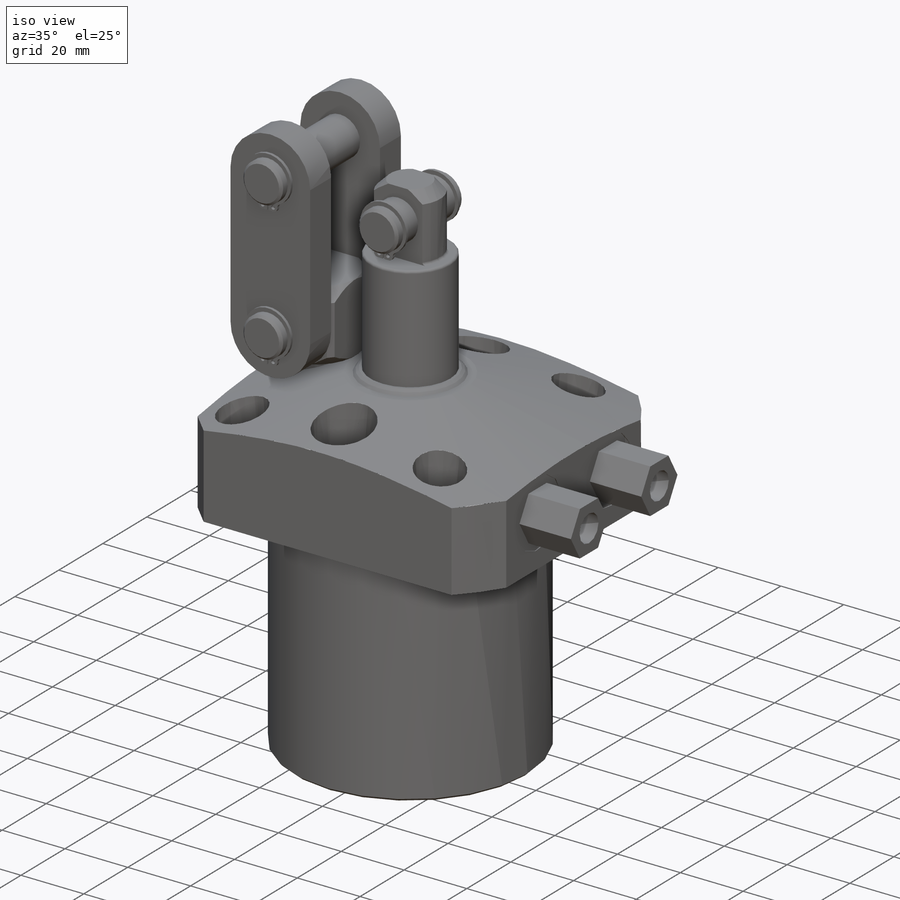
[diagram: iso view]
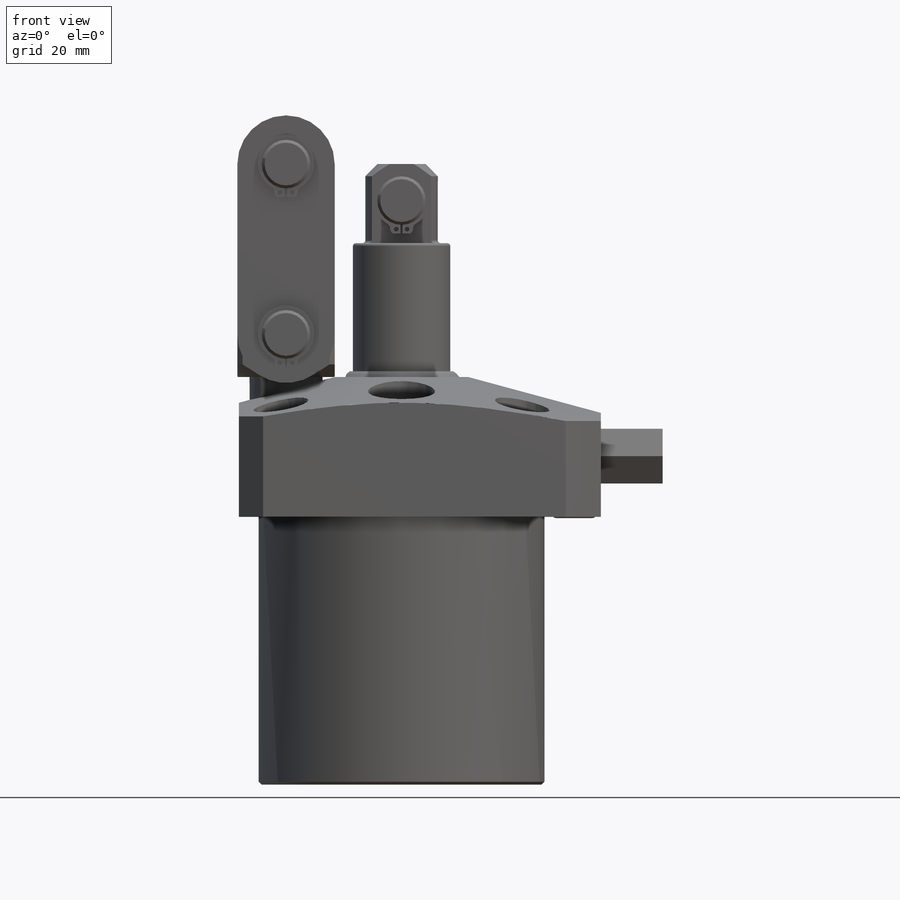
[diagram: front view]
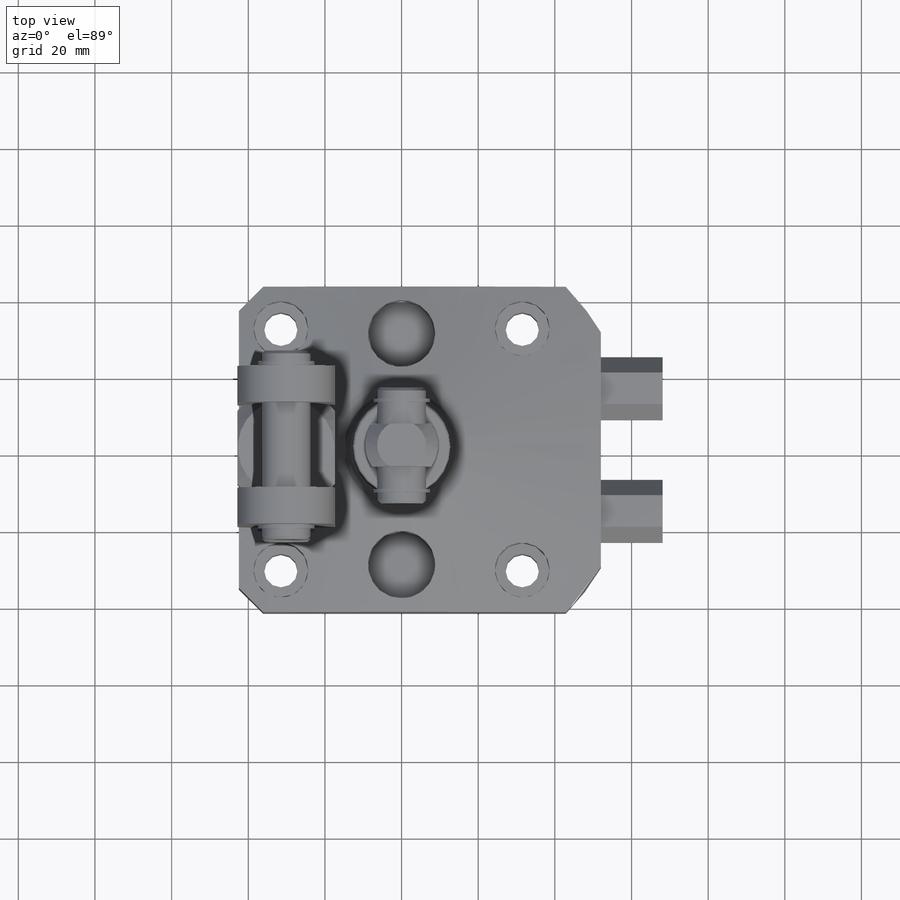
[diagram: top view]
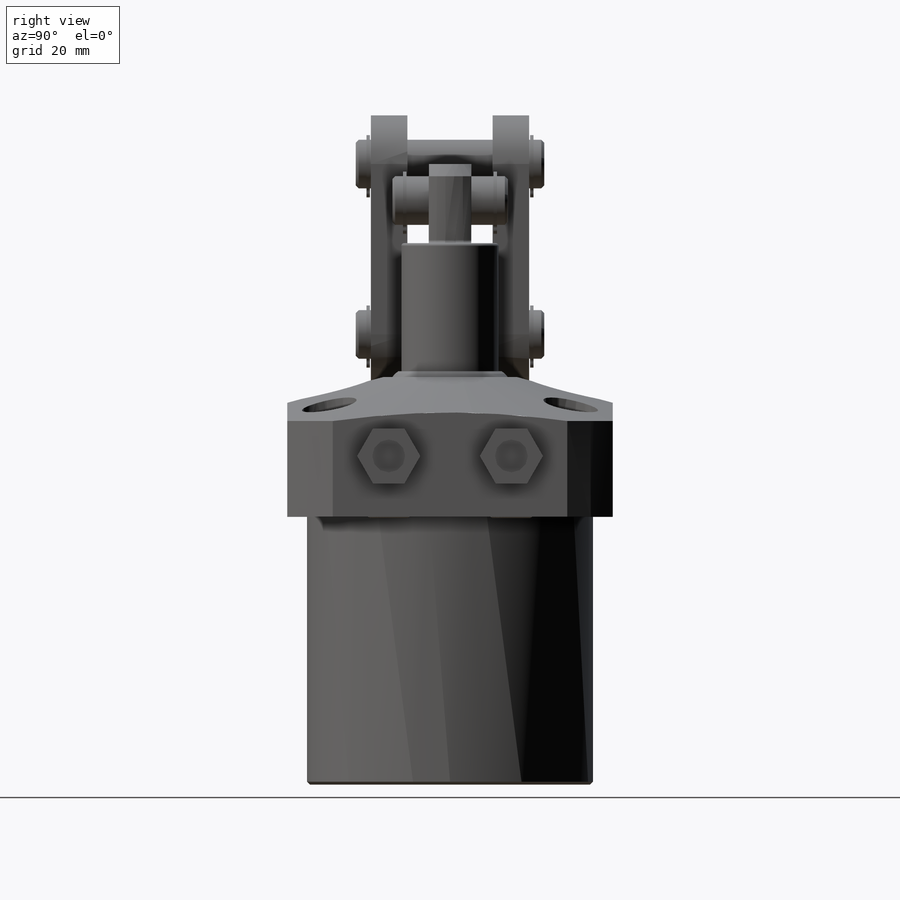
[diagram: right view]
SOLIDWORKS PART (.sldprt)
format: sldprt  version: not decoded by parser v0  size: 750,080 bytes
history: native  units: mm
features: sketch x21, extrude x6, revolve x5, mirror x5, cut_extrude x4, chamfer x4, plane x3, hole x2, cut_revolve x2, material x1, fillet x1, pattern_linear x1 (+14 scaffold rows collapsed)
feature tree (69):
  scaffold x14  (default folders/planes/origin — collapsed)
  material  "Alloy Steel"
  sketch  "Sketch28"  dims[c1.D1=76.962mm c1.D2=74.5998mm c1.D3=69.85mm c1.D4=3.048mm c1.D5=120.65mm c1.D6=~23.889137mm c2.D6=15.0deg c2.D7=34.925mm c2.D8=36.4998mm]
  revolve  "Revolve7"  Angle=360deg
  sketch  "Sketch3"  dims[c1.D1=84.9376mm c1.D2=51.9938mm c1.D3=11.7348mm c2.D3=120.0deg c2.D4=30.1498mm c2.D5=42.4688mm]
  cut_extrude  "Cut-Extrude9"  [1 undecoded]
  chamfer  "Chamfer8"  Distance=6.35mm Angle=45deg
  chamfer  "Chamfer5"  Distance=0.762mm Angle=45deg
  hole  "Hole1"  Diameter=8.7376mm Depth=36.4998mm
  sketch  "Sketch32"  dims[c1.D1=50.8mm c1.D2=50.8mm c1.D3=50.8mm c1.D4=25.4mm c2.D1=19.05mm c2.D2=20.0025mm c3.D1=62.992mm c3.D2=62.992mm]
  sketch  "Sketch31"  dims[Diameter=8.7376mm Depth=36.4998mm C-Bore Diameter=14.2748mm C-Bore Depth=17.4498mm]
  sketch  "Sketch34"  dims[D1=17.5006mm D2=30.1498mm]
  cut_extrude  "Cut-Extrude10"  Depth=19.05mm
  plane  "Plane23"  Offset=15.875mm
  sketch  "S2D0007"  dims[c1.D1=0.254mm c1.D2=6.35mm c1.D3=9.9568mm c1.D4=~0.963415mm c2.D4=45.0deg c2.D5=2.0828mm c3.D5=12.0deg c3.D6=2.0701mm c3.D7=0.254mm c3.D8=20.955mm c3.D1=12.4333mm c3.D9=16.002mm c3.D2=3.4544mm c4.D2=59.0deg c4.D10=13.97mm]
  cut_revolve  "Cut-Revolve2"  Angle=360deg
  plane  "Plane24"  Offset=16.002mm
  sketch  "Sketch6"  dims[c1.D3=1.778mm c1.D8=3.7211mm c1.D1=1.4478mm c1.D2=11.0998mm c2.D3=1.2446mm c3.D3=59.0deg c3.D4=23.876mm c3.D5=2.4892mm c3.D6=1.1303mm c4.D6=59.0deg c4.D7=1.016mm c4.D8=6.5024mm c4.D9=11.3411mm c4.D10=4.7498mm c4.D2=45.0088mm c4.D3=~2.144955mm c5.D3=59.0deg c5.D6=~1.353155mm c6.D6=59.0deg c6.D4=9.5631mm c6.D5=0.8636mm c6.D1=1.4478mm c7.D6=3.175mm c7.D7=0.5588mm c7.D10=2.286mm c7.D11=4.6228mm]
  cut_revolve  "Cut-Revolve3"  Angle=360deg
  sketch  "Sketch38"  dims[D1=14.2748mm]
  extrude  "Extrude14"  Depth=16.383mm
  hole  "Hole2"  Diameter=8.6106mm Depth=6.7056mm
  sketch  "Sketch40"
  sketch  "Sketch39"  dims[Diameter=8.6106mm Depth=6.7056mm]
  mirror  "Mirror6"
  sketch  "Sketch33"  dims[D3=1.778mm D1=9.5631mm D2=0.8636mm]
  revolve  "Revolve9"  Angle=360deg
  mirror  "Mirror7"
  sketch  "Sketch12"  dims[D1=4.7498mm D2=1.524mm D3=26.924mm D4=30.1498mm]
  revolve  "Revolve2"  Angle=360deg
  plane  "Plane25"
  sketch  "Sketch13"  dims[c1.D1=9.525mm c1.D2=82.55mm c1.D3=19.05mm c1.D4=0.762mm c2.D4=45.0deg c2.D5=3.175mm c2.D6=25.3873mm c2.D7=20.6248mm]
  revolve  "Revolve3"  Angle=360deg
  sketch  "Sketch14"  dims[c1.D1=9.525mm c1.D2=~8.01621mm c2.D2=90.0deg c2.D1=11.0998mm]
  cut_extrude  "Cut-Extrude7"  [1 undecoded]
  fillet  "Fillet4"  Radius=0.762mm
  sketch  "Sketch29"  dims[D1=12.6746mm D2=9.525mm]
  extrude  "Extrude11"  Depth=30.1498mm
  sketch  "Sketch16"  dims[c1.D1=7.366mm c1.D4=4.7498mm c1.D6=0.635mm c1.D7=2.2225mm c1.D8=5.9436mm c1.D10=1.1938mm c1.D11=1.1938mm c2.D6=1.0414mm c2.D4=1.0414mm c3.D6=1.1938mm c3.D2=2.7432mm c3.D3=0.2286mm c3.D4=~1.19888mm c3.D5=1.0414mm c3.D7=2.7432mm c3.D9=~0.47752mm c4.D4=1.1938mm c4.D5=~1.43256mm]
  extrude  "Extrude2"  Depth=0.889mm
  chamfer  "Chamfer6"  Distance=0.762mm Angle=45deg
  mirror  "Mirror2"
  sketch  "Sketch35"  dims[c1.D1=12.7mm c1.D2=19.05mm c1.D3=31.75mm c1.D4=41.275mm c1.D5=12.7mm c1.D6=30.1498mm c1.D9=3.302mm c1.D10=3.302mm c1.D7=36.4998mm c2.D5=22.225mm]
  revolve  "Revolve10"  Angle=360deg
  sketch  "Sketch36"  dims[c1.D1=12.7mm c1.D2=12.7mm c2.D1=25.4mm c2.D2=22.225mm]
  cut_extrude  "Cut-Extrude11"  [1 undecoded]
  sketch  "Sketch30"  dims[D3=12.6746mm D1=47.625mm D2=30.1498mm]
  extrude  "Extrude12"  Depth=49.1998mm
  sketch  "Sketch19"  dims[c1.D1=7.366mm c1.D3=6.35mm c1.D4=1.1938mm c1.D5=1.1938mm c1.D6=1.1938mm c1.D9=5.9436mm c1.D2=2.7432mm c2.D3=0.2286mm c2.D7=~0.47752mm c2.D8=2.7432mm c2.D10=1.1938mm c2.D11=~1.43256mm]
  extrude  "Extrude4"  Depth=0.889mm
  sketch  "Sketch37"  dims[D1=25.4mm D2=44.45mm D3=~31.618603mm]
  extrude  "Extrude13"  Depth=9.525mm
  mirror  "Mirror3"
  chamfer  "Chamfer7"  Distance=0.762mm Angle=45deg
  pattern_linear  "LPattern2"  Count1=2 Count2=1 Spacing1=44.45mm Spacing2=40.005mm
  mirror  "Mirror8"
decode coverage: 42 of 51 modeling features carry decoded parameters
note: ~ marks probable driven/reference dimensions
note: 3 parameter values undecoded
summary: no parameter record found for 3 features
note: suppression state not decoded; provenance and decode notes live in map.json
